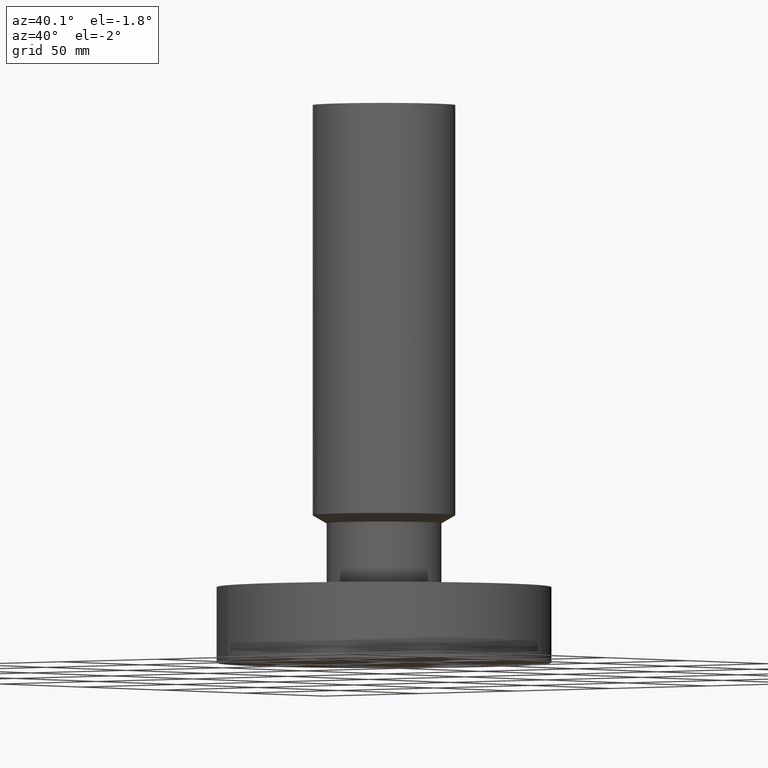
[diagram: clean part render]
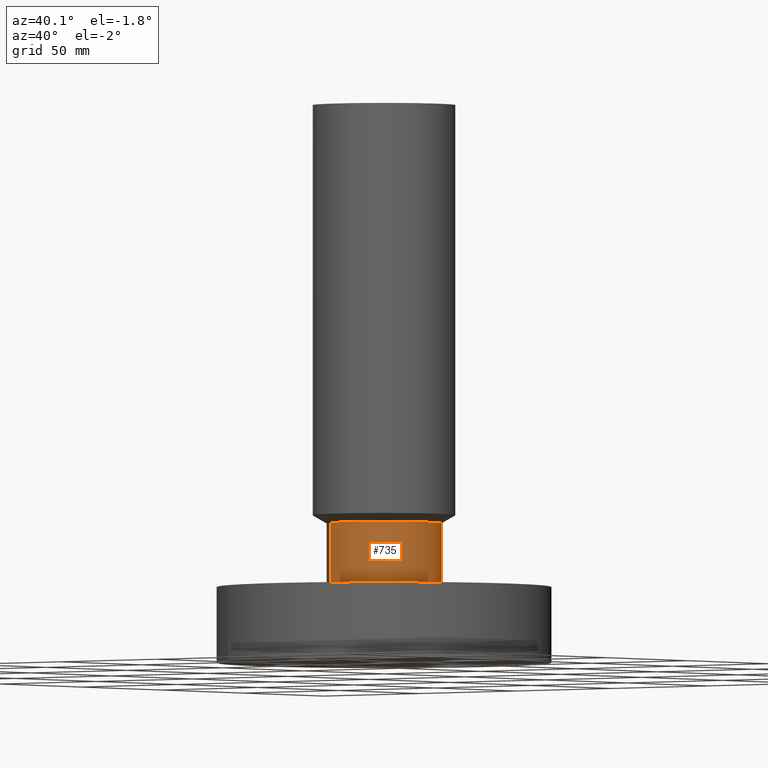
[diagram: same view with one face highlighted and labeled with its STEP entity id]
A machine part, auxiliary view. The second image highlights one B-rep face of the part: STEP entity #735.
In plain terms, the highlighted cylindrical surface (partial cylindrical patch) has radius 22.987 mm, axis along (0, 0, -1).
Its self-contained STEP definition (entity closure, byte-faithful):
#497=AXIS2_PLACEMENT_3D('Circle Axis2P3D',#495,#496,$) ;
#708=AXIS2_PLACEMENT_3D('Cylinder Axis2P3D',#705,#706,#707) ;
#719=AXIS2_PLACEMENT_3D('Circle Axis2P3D',#717,#718,$) ;
#492=CARTESIAN_POINT('Vertex',(0.433880112439,0.794212218514,1.23098076212)) ;
#495=CARTESIAN_POINT('Axis2P3D Location',(0.,0.,1.23098076212)) ;
#499=CARTESIAN_POINT('Vertex',(-0.433880112439,-0.794212218514,1.23098076212)) ;
#705=CARTESIAN_POINT('Axis2P3D Location',(0.,0.,4.25000000002)) ;
#710=CARTESIAN_POINT('Line Origine',(0.433880112439,0.794212218514,1.71049038106)) ;
#714=CARTESIAN_POINT('Vertex',(0.433880112439,0.794212218514,2.19000000001)) ;
#717=CARTESIAN_POINT('Axis2P3D Location',(0.,0.,2.19000000001)) ;
#721=CARTESIAN_POINT('Vertex',(-0.433880112439,-0.794212218514,2.19000000001)) ;
#724=CARTESIAN_POINT('Line Origine',(-0.433880112439,-0.794212218514,1.71049038106)) ;
#496=DIRECTION('Axis2P3D Direction',(-0.,0.,0.0393700787402)) ;
#706=DIRECTION('Axis2P3D Direction',(0.,0.,-0.0393700787402)) ;
#707=DIRECTION('Axis2P3D XDirection',(-0.0188750212049,-0.0345504945626,0.)) ;
#711=DIRECTION('Vector Direction',(0.,0.,-0.0393700787402)) ;
#718=DIRECTION('Axis2P3D Direction',(0.,0.,-0.0393700787402)) ;
#725=DIRECTION('Vector Direction',(0.,0.,-0.0393700787402)) ;
#712=VECTOR('Line Direction',#711,0.0393700787402) ;
#726=VECTOR('Line Direction',#725,0.0393700787402) ;
#730=ORIENTED_EDGE('',*,*,#501,.F.) ;
#731=ORIENTED_EDGE('',*,*,#716,.T.) ;
#732=ORIENTED_EDGE('',*,*,#723,.T.) ;
#733=ORIENTED_EDGE('',*,*,#728,.F.) ;
#735=ADVANCED_FACE('PartBody',(#734),#709,.T.) ;
#498=CIRCLE('generated circle',#497,0.905000000004) ;
#720=CIRCLE('generated circle',#719,0.905000000004) ;
#709=CYLINDRICAL_SURFACE('generated cylinder',#708,0.905000000004) ;
#501=EDGE_CURVE('',#493,#500,#498,.F.) ;
#716=EDGE_CURVE('',#493,#715,#713,.F.) ;
#723=EDGE_CURVE('',#715,#722,#720,.T.) ;
#728=EDGE_CURVE('',#500,#722,#727,.F.) ;
#729=EDGE_LOOP('',(#730,#731,#732,#733)) ;
#734=FACE_OUTER_BOUND('',#729,.T.) ;
#713=LINE('Line',#710,#712) ;
#727=LINE('Line',#724,#726) ;
#493=VERTEX_POINT('',#492) ;
#500=VERTEX_POINT('',#499) ;
#715=VERTEX_POINT('',#714) ;
#722=VERTEX_POINT('',#721) ;